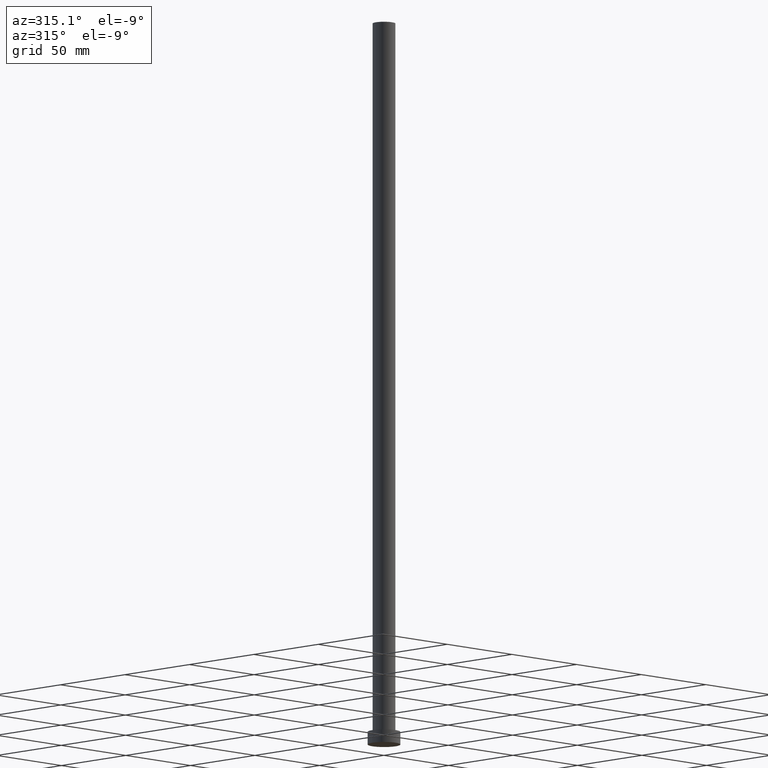
[diagram: clean part render]
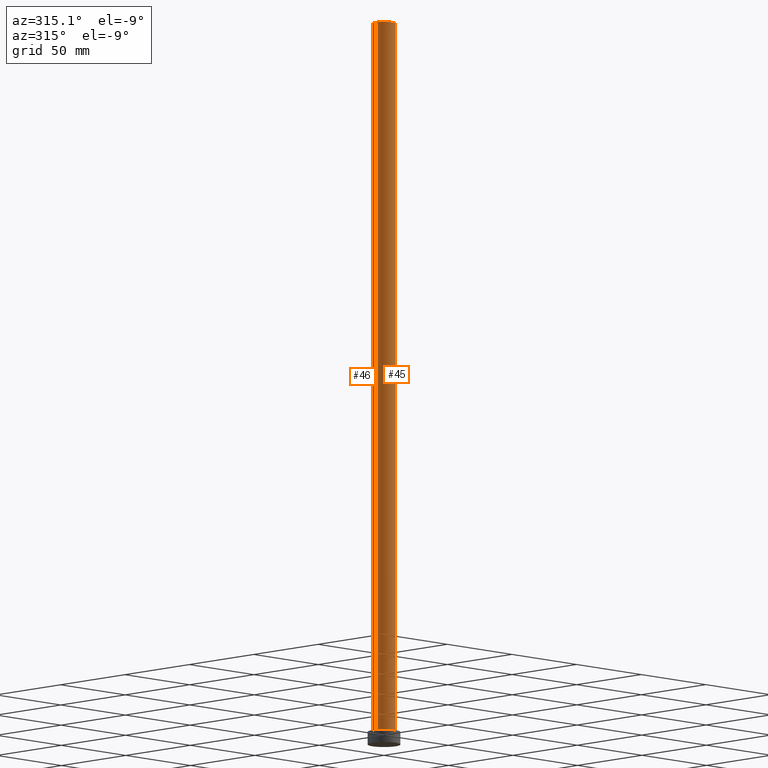
[diagram: same view with one multi-face feature highlighted, each face labeled with its STEP entity id]
A machine part, auxiliary view. The highlighted faces form ONE feature: a constant-radius fillet chain: 2 tangent blend faces with common blend radius 6.25 mm. The faces share edges in the B-rep.
Their STEP definitions:
[1] entity #45 (Cylinder):
#8 = CARTESIAN_POINT ( 'NONE',  ( -6.250000000000000000, 0.000000000000000000, 400.0000000000000000 ) ) ;
#10 = CARTESIAN_POINT ( 'NONE',  ( -6.250000000000000000, 0.000000000000000000, 400.0000000000000000 ) ) ;
#11 = LINE ( 'NONE', #12, #199 ) ;
#12 = CARTESIAN_POINT ( 'NONE',  ( 6.250000000000000000, 7.654042494670957606E-16, 400.0000000000000000 ) ) ;
#25 = FACE_OUTER_BOUND ( 'NONE', #134, .T. ) ;
#28 = AXIS2_PLACEMENT_3D ( 'NONE', #141, #239, #196 ) ;
#36 = LINE ( 'NONE', #10, #40 ) ;
#40 = VECTOR ( 'NONE', #168, 1000.000000000000000 ) ;
#45 = ADVANCED_FACE ( 'NONE', ( #25 ), #70, .T. ) ;
#63 = CIRCLE ( 'NONE', #28, 6.250000000000000000 ) ;
#70 = CYLINDRICAL_SURFACE ( 'NONE', #241, 6.250000000000000000 ) ;
#73 = VERTEX_POINT ( 'NONE', #110 ) ;
#85 = DIRECTION ( 'NONE',  ( 0.000000000000000000, 0.000000000000000000, 1.000000000000000000 ) ) ;
#87 = EDGE_CURVE ( 'NONE', #131, #73, #36, .T. ) ;
#94 = CARTESIAN_POINT ( 'NONE',  ( 0.000000000000000000, 0.000000000000000000, 400.0000000000000000 ) ) ;
#107 = ORIENTED_EDGE ( 'NONE', *, *, #233, .T. ) ;
#110 = CARTESIAN_POINT ( 'NONE',  ( -6.250000000000000000, 0.000000000000000000, 7.000000000000000000 ) ) ;
#111 = CARTESIAN_POINT ( 'NONE',  ( 6.250000000000000000, 7.654042494670957606E-16, 400.0000000000000000 ) ) ;
#120 = ORIENTED_EDGE ( 'NONE', *, *, #184, .F. ) ;
#131 = VERTEX_POINT ( 'NONE', #8 ) ;
#133 = DIRECTION ( 'NONE',  ( -0.000000000000000000, -0.000000000000000000, -1.000000000000000000 ) ) ;
#134 = EDGE_LOOP ( 'NONE', ( #179, #120, #209, #107 ) ) ;
#137 = VERTEX_POINT ( 'NONE', #111 ) ;
#140 = EDGE_CURVE ( 'NONE', #137, #144, #11, .T. ) ;
#141 = CARTESIAN_POINT ( 'NONE',  ( 0.000000000000000000, 0.000000000000000000, 400.0000000000000000 ) ) ;
#144 = VERTEX_POINT ( 'NONE', #219 ) ;
#168 = DIRECTION ( 'NONE',  ( -0.000000000000000000, -0.000000000000000000, -1.000000000000000000 ) ) ;
#179 = ORIENTED_EDGE ( 'NONE', *, *, #140, .F. ) ;
#184 = EDGE_CURVE ( 'NONE', #131, #137, #63, .T. ) ;
#185 = CARTESIAN_POINT ( 'NONE',  ( 0.000000000000000000, 0.000000000000000000, 7.000000000000000000 ) ) ;
#196 = DIRECTION ( 'NONE',  ( 1.000000000000000000, 0.000000000000000000, 0.000000000000000000 ) ) ;
#199 = VECTOR ( 'NONE', #247, 1000.000000000000000 ) ;
#201 = AXIS2_PLACEMENT_3D ( 'NONE', #185, #85, #245 ) ;
#209 = ORIENTED_EDGE ( 'NONE', *, *, #87, .T. ) ;
#219 = CARTESIAN_POINT ( 'NONE',  ( 6.250000000000000000, 7.654042494670957606E-16, 7.000000000000000000 ) ) ;
#233 = EDGE_CURVE ( 'NONE', #73, #144, #248, .T. ) ;
#239 = DIRECTION ( 'NONE',  ( 0.000000000000000000, 0.000000000000000000, 1.000000000000000000 ) ) ;
#241 = AXIS2_PLACEMENT_3D ( 'NONE', #94, #133, #249 ) ;
#245 = DIRECTION ( 'NONE',  ( 1.000000000000000000, 0.000000000000000000, 0.000000000000000000 ) ) ;
#247 = DIRECTION ( 'NONE',  ( -0.000000000000000000, -0.000000000000000000, -1.000000000000000000 ) ) ;
#248 = CIRCLE ( 'NONE', #201, 6.250000000000000000 ) ;
#249 = DIRECTION ( 'NONE',  ( -1.000000000000000000, 0.000000000000000000, 0.000000000000000000 ) ) ;
[2] entity #46 (Cylinder):
#8 = CARTESIAN_POINT ( 'NONE',  ( -6.250000000000000000, 0.000000000000000000, 400.0000000000000000 ) ) ;
#10 = CARTESIAN_POINT ( 'NONE',  ( -6.250000000000000000, 0.000000000000000000, 400.0000000000000000 ) ) ;
#11 = LINE ( 'NONE', #12, #199 ) ;
#12 = CARTESIAN_POINT ( 'NONE',  ( 6.250000000000000000, 7.654042494670957606E-16, 400.0000000000000000 ) ) ;
#29 = ORIENTED_EDGE ( 'NONE', *, *, #140, .T. ) ;
#32 = DIRECTION ( 'NONE',  ( -1.000000000000000000, 0.000000000000000000, 0.000000000000000000 ) ) ;
#36 = LINE ( 'NONE', #10, #40 ) ;
#40 = VECTOR ( 'NONE', #168, 1000.000000000000000 ) ;
#46 = ADVANCED_FACE ( 'NONE', ( #151 ), #229, .T. ) ;
#52 = CARTESIAN_POINT ( 'NONE',  ( 0.000000000000000000, 0.000000000000000000, 400.0000000000000000 ) ) ;
#69 = DIRECTION ( 'NONE',  ( 1.000000000000000000, 0.000000000000000000, 0.000000000000000000 ) ) ;
#73 = VERTEX_POINT ( 'NONE', #110 ) ;
#82 = CIRCLE ( 'NONE', #175, 6.250000000000000000 ) ;
#87 = EDGE_CURVE ( 'NONE', #131, #73, #36, .T. ) ;
#88 = DIRECTION ( 'NONE',  ( 0.000000000000000000, 0.000000000000000000, 1.000000000000000000 ) ) ;
#93 = EDGE_CURVE ( 'NONE', #144, #73, #82, .T. ) ;
#105 = AXIS2_PLACEMENT_3D ( 'NONE', #52, #130, #32 ) ;
#110 = CARTESIAN_POINT ( 'NONE',  ( -6.250000000000000000, 0.000000000000000000, 7.000000000000000000 ) ) ;
#111 = CARTESIAN_POINT ( 'NONE',  ( 6.250000000000000000, 7.654042494670957606E-16, 400.0000000000000000 ) ) ;
#119 = CARTESIAN_POINT ( 'NONE',  ( 0.000000000000000000, 0.000000000000000000, 7.000000000000000000 ) ) ;
#126 = CIRCLE ( 'NONE', #235, 6.250000000000000000 ) ;
#130 = DIRECTION ( 'NONE',  ( -0.000000000000000000, -0.000000000000000000, -1.000000000000000000 ) ) ;
#131 = VERTEX_POINT ( 'NONE', #8 ) ;
#137 = VERTEX_POINT ( 'NONE', #111 ) ;
#139 = ORIENTED_EDGE ( 'NONE', *, *, #87, .F. ) ;
#140 = EDGE_CURVE ( 'NONE', #137, #144, #11, .T. ) ;
#144 = VERTEX_POINT ( 'NONE', #219 ) ;
#151 = FACE_OUTER_BOUND ( 'NONE', #165, .T. ) ;
#155 = ORIENTED_EDGE ( 'NONE', *, *, #93, .T. ) ;
#165 = EDGE_LOOP ( 'NONE', ( #207, #29, #155, #139 ) ) ;
#168 = DIRECTION ( 'NONE',  ( -0.000000000000000000, -0.000000000000000000, -1.000000000000000000 ) ) ;
#175 = AXIS2_PLACEMENT_3D ( 'NONE', #119, #190, #237 ) ;
#190 = DIRECTION ( 'NONE',  ( 0.000000000000000000, 0.000000000000000000, 1.000000000000000000 ) ) ;
#199 = VECTOR ( 'NONE', #247, 1000.000000000000000 ) ;
#202 = CARTESIAN_POINT ( 'NONE',  ( 0.000000000000000000, 0.000000000000000000, 400.0000000000000000 ) ) ;
#207 = ORIENTED_EDGE ( 'NONE', *, *, #244, .F. ) ;
#219 = CARTESIAN_POINT ( 'NONE',  ( 6.250000000000000000, 7.654042494670957606E-16, 7.000000000000000000 ) ) ;
#229 = CYLINDRICAL_SURFACE ( 'NONE', #105, 6.250000000000000000 ) ;
#235 = AXIS2_PLACEMENT_3D ( 'NONE', #202, #88, #69 ) ;
#237 = DIRECTION ( 'NONE',  ( 1.000000000000000000, 0.000000000000000000, 0.000000000000000000 ) ) ;
#244 = EDGE_CURVE ( 'NONE', #137, #131, #126, .T. ) ;
#247 = DIRECTION ( 'NONE',  ( -0.000000000000000000, -0.000000000000000000, -1.000000000000000000 ) ) ;